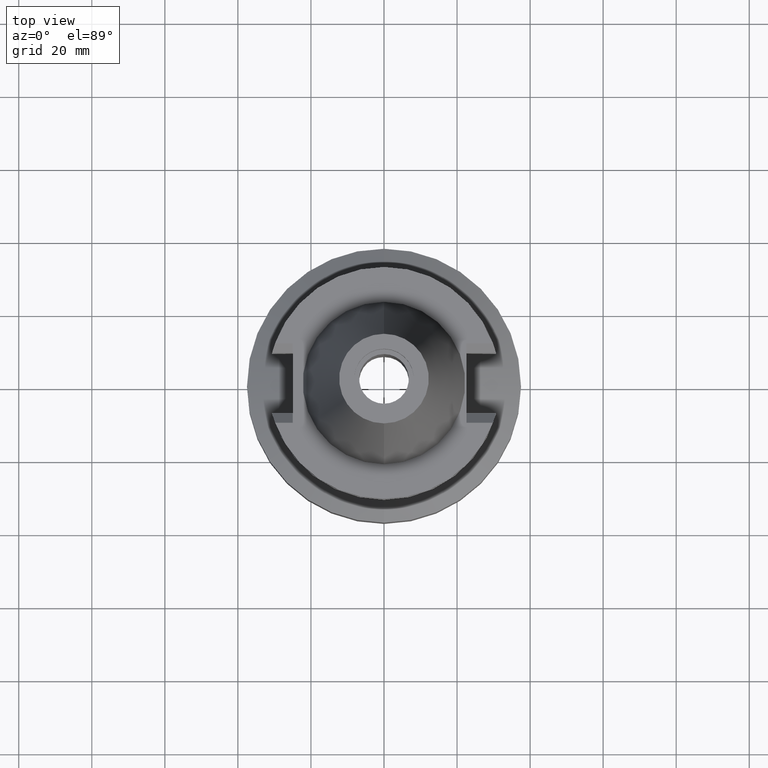
[diagram: clean part render]
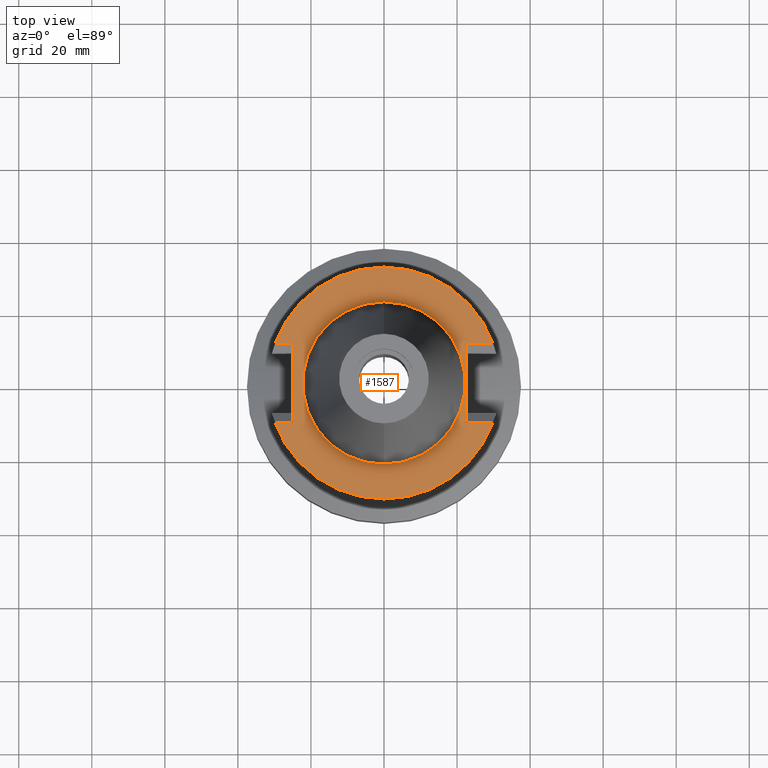
[diagram: same view with one face highlighted and labeled with its STEP entity id]
A machine part, top view. The second image highlights one B-rep face of the part: STEP entity #1587.
In plain terms, the highlighted planar face has unit normal (0, 0, -1).
Its self-contained STEP definition (entity closure, byte-faithful):
#94=DIRECTION('',(0.E0,-1.E0,0.E0));
#95=VECTOR('',#94,2.178E1);
#96=CARTESIAN_POINT('',(2.257E1,1.089E1,-9.999999999999E-1));
#97=LINE('',#96,#95);
#101=DIRECTION('',(1.E0,5.901606950553E-14,0.E0));
#102=VECTOR('',#101,7.253990343347E0);
#103=CARTESIAN_POINT('',(2.257E1,-1.089E1,-9.999999999999E-1));
#104=LINE('',#103,#102);
#108=CARTESIAN_POINT('',(0.E0,2.164471368983E-14,-9.999999999999E-1));
#109=DIRECTION('',(0.E0,0.E0,-1.E0));
#110=DIRECTION('',(9.393382785306E-1,-3.429921259843E-1,0.E0));
#111=AXIS2_PLACEMENT_3D('',#108,#109,#110);
#116=CARTESIAN_POINT('',(0.E0,2.164471368983E-14,-9.999999999999E-1));
#117=DIRECTION('',(0.E0,0.E0,-1.E0));
#118=DIRECTION('',(0.E0,-1.E0,0.E0));
#119=AXIS2_PLACEMENT_3D('',#116,#117,#118);
#124=DIRECTION('',(-1.E0,-9.387866586295E-14,0.E0));
#125=VECTOR('',#124,4.843990343348E0);
#126=CARTESIAN_POINT('',(-2.498E1,1.089E1,-9.999999999999E-1));
#127=LINE('',#126,#125);
#131=CARTESIAN_POINT('',(0.E0,2.164471368983E-14,-9.999999999999E-1));
#132=DIRECTION('',(0.E0,0.E0,-1.E0));
#133=DIRECTION('',(-9.393382785306E-1,3.429921259843E-1,0.E0));
#134=AXIS2_PLACEMENT_3D('',#131,#132,#133);
#139=CARTESIAN_POINT('',(0.E0,2.164471368983E-14,-9.999999999999E-1));
#140=DIRECTION('',(0.E0,0.E0,-1.E0));
#141=DIRECTION('',(0.E0,1.E0,0.E0));
#142=AXIS2_PLACEMENT_3D('',#139,#140,#141);
#147=CARTESIAN_POINT('',(0.E0,2.164471368983E-14,-1.E0));
#148=DIRECTION('',(0.E0,0.E0,1.E0));
#149=DIRECTION('',(0.E0,-1.E0,0.E0));
#150=AXIS2_PLACEMENT_3D('',#147,#148,#149);
#155=CARTESIAN_POINT('',(0.E0,2.164471368983E-14,-1.E0));
#156=DIRECTION('',(0.E0,0.E0,1.E0));
#157=DIRECTION('',(0.E0,1.E0,0.E0));
#158=AXIS2_PLACEMENT_3D('',#155,#156,#157);
#291=DIRECTION('',(1.E0,-6.244438889590E-14,0.E0));
#292=VECTOR('',#291,7.253990343348E0);
#293=CARTESIAN_POINT('',(2.257E1,1.089E1,-9.999999999999E-1));
#294=LINE('',#293,#292);
#308=CARTESIAN_POINT('',(2.982399034335E1,1.089E1,-1.000000000001E0));
#335=DIRECTION('',(0.E0,-1.E0,0.E0));
#336=VECTOR('',#335,2.178E1);
#337=CARTESIAN_POINT('',(-2.498E1,1.089E1,-9.999999999999E-1));
#338=LINE('',#337,#336);
#561=DIRECTION('',(-1.E0,8.764453570798E-14,0.E0));
#562=VECTOR('',#561,4.843990343348E0);
#563=CARTESIAN_POINT('',(-2.498E1,-1.089E1,-9.999999999999E-1));
#564=LINE('',#563,#562);
#575=CARTESIAN_POINT('',(2.982399034335E1,-1.089E1,-1.000000000001E0));
#600=CARTESIAN_POINT('',(-2.982399034335E1,-1.089E1,-1.000000000001E0));
#1370=CARTESIAN_POINT('',(2.257E1,-1.089E1,-9.999999999999E-1));
#1371=VERTEX_POINT('',#1370);
#1372=CARTESIAN_POINT('',(2.257E1,1.089E1,-9.999999999999E-1));
#1373=VERTEX_POINT('',#1372);
#1413=CARTESIAN_POINT('',(-2.498E1,1.089E1,-9.999999999999E-1));
#1414=VERTEX_POINT('',#1413);
#1415=CARTESIAN_POINT('',(-2.498E1,-1.089E1,-9.999999999999E-1));
#1416=VERTEX_POINT('',#1415);
#1459=VERTEX_POINT('',#575);
#1460=VERTEX_POINT('',#600);
#1461=CARTESIAN_POINT('',(-1.432899828923E-14,-3.175E1,-9.999999999999E-1));
#1462=VERTEX_POINT('',#1461);
#1465=VERTEX_POINT('',#308);
#1466=CARTESIAN_POINT('',(1.965806880743E-14,3.175E1,-9.999999999999E-1));
#1467=VERTEX_POINT('',#1466);
#1468=CARTESIAN_POINT('',(-2.982399034335E1,1.089E1,-9.999999999999E-1));
#1469=VERTEX_POINT('',#1468);
#1470=CARTESIAN_POINT('',(0.E0,-2.2225E1,-1.E0));
#1471=CARTESIAN_POINT('',(0.E0,2.2225E1,-1.E0));
#1472=VERTEX_POINT('',#1470);
#1473=VERTEX_POINT('',#1471);
#1556=CARTESIAN_POINT('',(0.E0,1.212400331156E-14,-9.999999999999E-1));
#1557=DIRECTION('',(0.E0,0.E0,-1.E0));
#1558=DIRECTION('',(0.E0,-1.E0,0.E0));
#1559=AXIS2_PLACEMENT_3D('',#1556,#1557,#1558);
#1560=PLANE('',#1559);
#1562=ORIENTED_EDGE('',*,*,#1561,.T.);
#1564=ORIENTED_EDGE('',*,*,#1563,.T.);
#1566=ORIENTED_EDGE('',*,*,#1565,.T.);
#1568=ORIENTED_EDGE('',*,*,#1567,.T.);
#1570=ORIENTED_EDGE('',*,*,#1569,.F.);
#1572=ORIENTED_EDGE('',*,*,#1571,.F.);
#1574=ORIENTED_EDGE('',*,*,#1573,.T.);
#1576=ORIENTED_EDGE('',*,*,#1575,.T.);
#1578=ORIENTED_EDGE('',*,*,#1577,.T.);
#1580=ORIENTED_EDGE('',*,*,#1579,.F.);
#1581=EDGE_LOOP('',(#1562,#1564,#1566,#1568,#1570,#1572,#1574,#1576,#1578,
#1580));
#1582=FACE_OUTER_BOUND('',#1581,.F.);
#1583=ORIENTED_EDGE('',*,*,#1535,.T.);
#1584=ORIENTED_EDGE('',*,*,#1551,.T.);
#1585=EDGE_LOOP('',(#1583,#1584));
#1586=FACE_BOUND('',#1585,.F.);
#112=CIRCLE('',#111,3.175E1);
#120=CIRCLE('',#119,3.175E1);
#135=CIRCLE('',#134,3.175E1);
#143=CIRCLE('',#142,3.175E1);
#151=CIRCLE('',#150,2.2225E1);
#159=CIRCLE('',#158,2.2225E1);
#1535=EDGE_CURVE('',#1472,#1473,#151,.T.);
#1551=EDGE_CURVE('',#1473,#1472,#159,.T.);
#1561=EDGE_CURVE('',#1373,#1371,#97,.T.);
#1563=EDGE_CURVE('',#1371,#1459,#104,.T.);
#1565=EDGE_CURVE('',#1459,#1462,#112,.T.);
#1567=EDGE_CURVE('',#1462,#1460,#120,.T.);
#1569=EDGE_CURVE('',#1416,#1460,#564,.T.);
#1571=EDGE_CURVE('',#1414,#1416,#338,.T.);
#1573=EDGE_CURVE('',#1414,#1469,#127,.T.);
#1575=EDGE_CURVE('',#1469,#1467,#135,.T.);
#1577=EDGE_CURVE('',#1467,#1465,#143,.T.);
#1579=EDGE_CURVE('',#1373,#1465,#294,.T.);
#1587=ADVANCED_FACE('',(#1582,#1586),#1560,.F.);